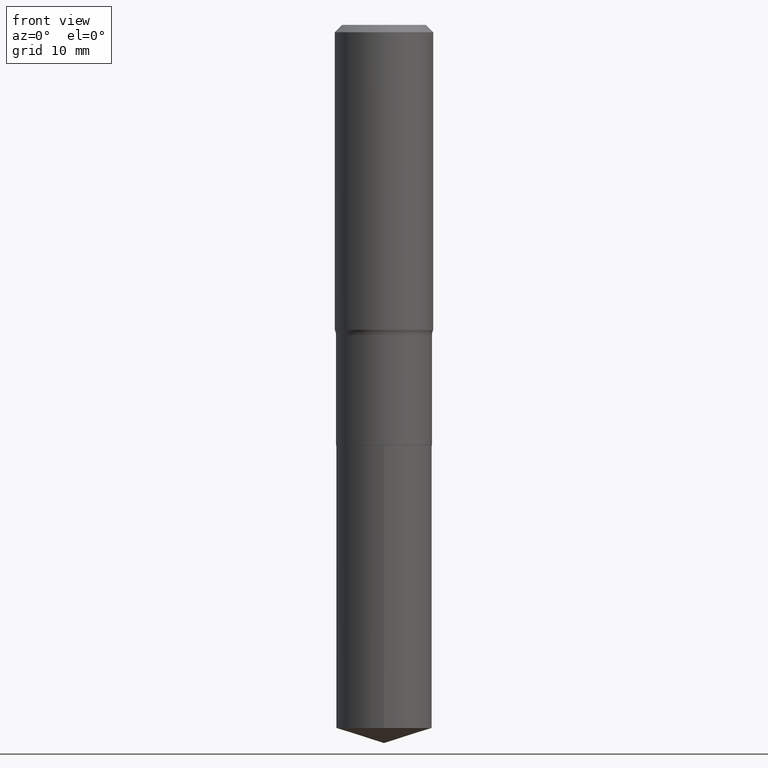
[diagram: clean part render]
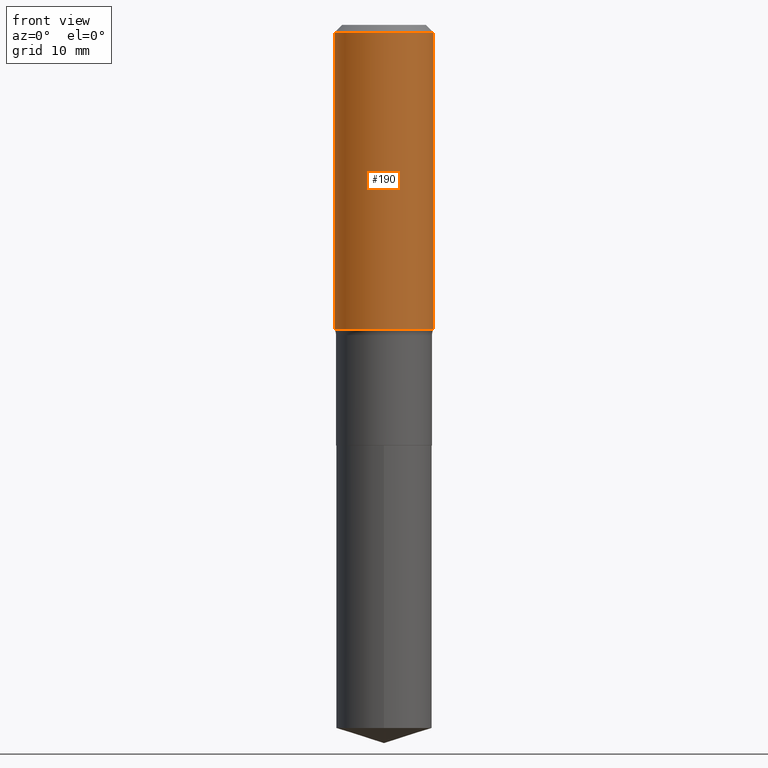
[diagram: same view with one face highlighted and labeled with its STEP entity id]
A machine part, front view. The second image highlights one B-rep face of the part: STEP entity #190.
In plain terms, the highlighted cylindrical surface (partial cylindrical patch) has radius 7.9375 mm, axis along (-0, 0, 1).
Its self-contained STEP definition (entity closure, byte-faithful):
#3 = CARTESIAN_POINT ( 'NONE',  ( 1.146313502899288910E-30, -1.636631877582733305E-16, -0.04687500000000024980 ) ) ;
#43 = CYLINDRICAL_SURFACE ( 'NONE', #167, 0.3125000000000000555 ) ;
#47 = DIRECTION ( 'NONE',  ( 1.000000000000000000, -6.982962677686268288E-15, 0.000000000000000000 ) ) ;
#57 = CIRCLE ( 'NONE', #454, 0.3125000000000000000 ) ;
#80 = DIRECTION ( 'NONE',  ( 1.000000000000000000, -6.982962677686268288E-15, 0.000000000000000000 ) ) ;
#98 = DIRECTION ( 'NONE',  ( -2.445468806185136877E-29, 3.491481338843145188E-15, 1.000000000000000000 ) ) ;
#141 = VERTEX_POINT ( 'NONE', #227 ) ;
#146 = VERTEX_POINT ( 'NONE', #281 ) ;
#154 = CARTESIAN_POINT ( 'NONE',  ( 0.000000000000000000, 0.000000000000000000, 0.000000000000000000 ) ) ;
#160 = FACE_OUTER_BOUND ( 'NONE', #449, .T. ) ;
#167 = AXIS2_PLACEMENT_3D ( 'NONE', #154, #381, #268 ) ;
#181 = VERTEX_POINT ( 'NONE', #422 ) ;
#183 = ORIENTED_EDGE ( 'NONE', *, *, #254, .F. ) ;
#190 = ADVANCED_FACE ( 'NONE', ( #160 ), #43, .T. ) ;
#191 = LINE ( 'NONE', #349, #348 ) ;
#197 = AXIS2_PLACEMENT_3D ( 'NONE', #270, #314, #47 ) ;
#199 = DIRECTION ( 'NONE',  ( -2.445468806185136597E-29, 3.491481338843145583E-15, 1.000000000000000000 ) ) ;
#202 = ORIENTED_EDGE ( 'NONE', *, *, #226, .T. ) ;
#203 = CARTESIAN_POINT ( 'NONE',  ( -0.3125000000000000000, -1.243060822280509884E-15, -0.04687500000000024980 ) ) ;
#209 = VECTOR ( 'NONE', #98, 39.37007874015748143 ) ;
#216 = CIRCLE ( 'NONE', #197, 0.3125000000000001665 ) ;
#226 = EDGE_CURVE ( 'NONE', #181, #141, #216, .T. ) ;
#227 = CARTESIAN_POINT ( 'NONE',  ( 0.3125000000000001665, -8.945526392080334964E-15, -1.937100588240382004 ) ) ;
#254 = EDGE_CURVE ( 'NONE', #475, #146, #57, .T. ) ;
#268 = DIRECTION ( 'NONE',  ( 1.000000000000000000, -6.982962677686266711E-15, 4.876176775795936353E-29 ) ) ;
#270 = CARTESIAN_POINT ( 'NONE',  ( 4.737119062984733269E-29, -6.763350555303374250E-15, -1.937100588240382004 ) ) ;
#281 = CARTESIAN_POINT ( 'NONE',  ( 0.3125000000000000000, -2.345839024535231998E-15, -0.04687500000000024980 ) ) ;
#290 = LINE ( 'NONE', #433, #209 ) ;
#293 = ORIENTED_EDGE ( 'NONE', *, *, #490, .T. ) ;
#314 = DIRECTION ( 'NONE',  ( -2.445468806185136597E-29, 3.491481338843145583E-15, 1.000000000000000000 ) ) ;
#325 = EDGE_CURVE ( 'NONE', #181, #475, #191, .T. ) ;
#345 = DIRECTION ( 'NONE',  ( -2.445468806185136877E-29, 3.491481338843145188E-15, 1.000000000000000000 ) ) ;
#348 = VECTOR ( 'NONE', #345, 39.37007874015748143 ) ;
#349 = CARTESIAN_POINT ( 'NONE',  ( -0.3125000000000000555, 2.220446049250313475E-15, -1.537167215704658512E-29 ) ) ;
#381 = DIRECTION ( 'NONE',  ( -2.445468806185136597E-29, 3.491481338843145583E-15, 1.000000000000000000 ) ) ;
#422 = CARTESIAN_POINT ( 'NONE',  ( -0.3125000000000001665, -4.542904506053060381E-15, -1.937100588240382004 ) ) ;
#433 = CARTESIAN_POINT ( 'NONE',  ( 0.3125000000000000555, -2.182175836776958741E-15, 1.523805242436230356E-29 ) ) ;
#449 = EDGE_LOOP ( 'NONE', ( #472, #202, #293, #183 ) ) ;
#454 = AXIS2_PLACEMENT_3D ( 'NONE', #3, #199, #80 ) ;
#472 = ORIENTED_EDGE ( 'NONE', *, *, #325, .F. ) ;
#475 = VERTEX_POINT ( 'NONE', #203 ) ;
#490 = EDGE_CURVE ( 'NONE', #141, #146, #290, .T. ) ;